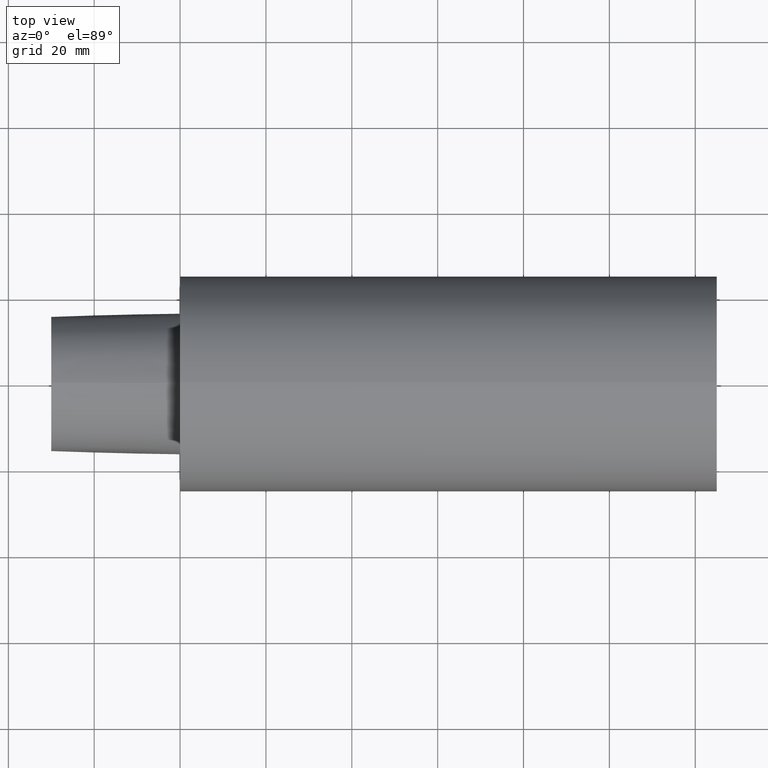
[diagram: clean part render]
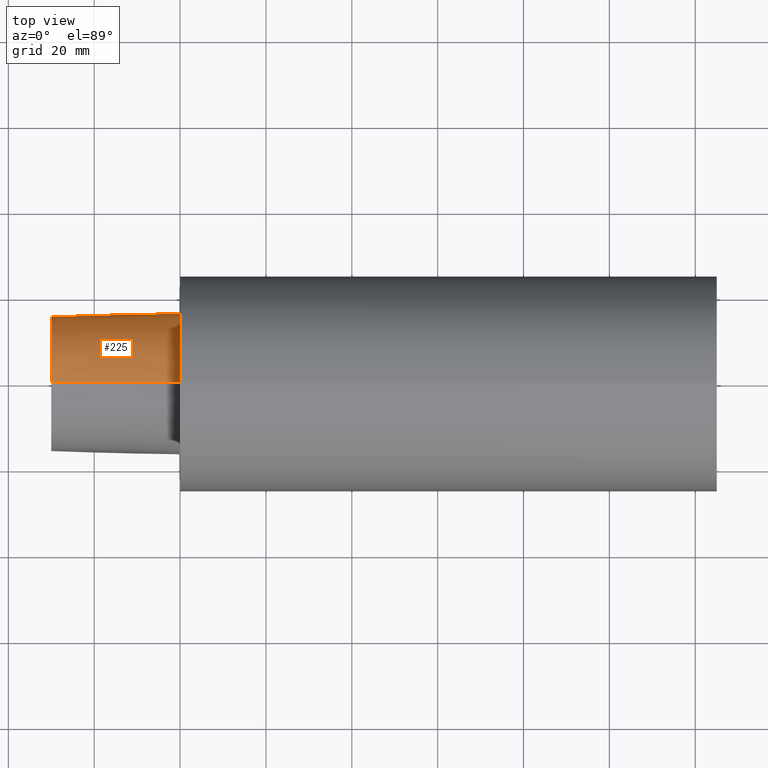
[diagram: same view with one face highlighted and labeled with its STEP entity id]
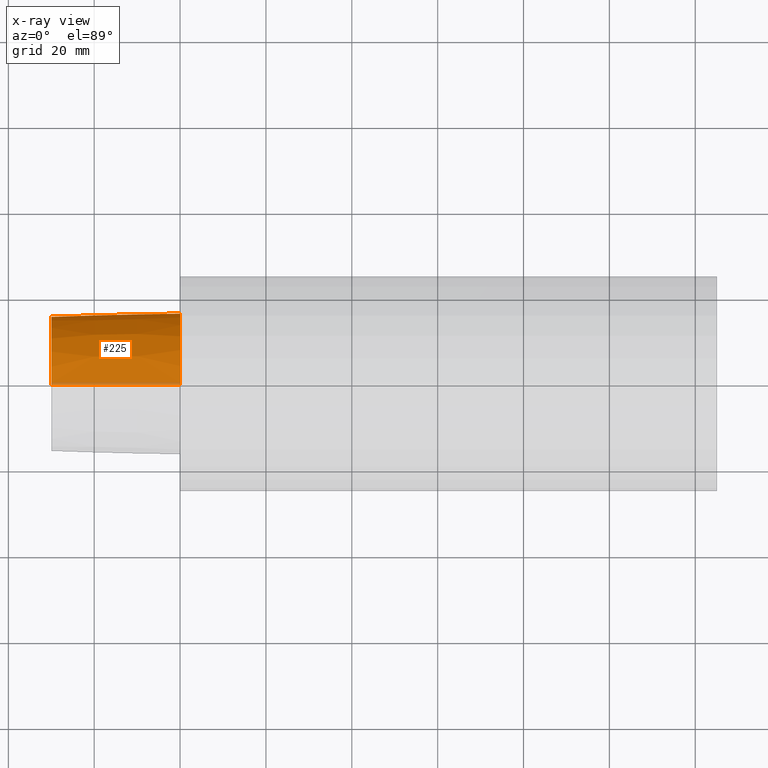
[diagram: x-ray of the same camera — body ghosted, the highlighted face saturated]
A machine part, top view. The second image highlights one B-rep face of the part: STEP entity #225.
The next image is the same camera in x-ray: the body ghosted, the highlighted face saturated — about 4% of this face is hidden behind the body in this view.
In plain terms, the highlighted conical surface has half-angle 1.432 deg.
Its self-contained STEP definition (entity closure, byte-faithful):
#7 = CARTESIAN_POINT ( 'NONE',  ( -29.99999996940000102, 0.000000000000000000, -15.70494056296217700 ) ) ;
#15 = VERTEX_POINT ( 'NONE', #41 ) ;
#22 = CARTESIAN_POINT ( 'NONE',  ( 0.000000000000000000, 0.000000000000000000, 0.000000000000000000 ) ) ;
#25 = AXIS2_PLACEMENT_3D ( 'NONE', #22, #99, #62 ) ;
#36 = CARTESIAN_POINT ( 'NONE',  ( 0.000000000000000000, 2.015157114129614578E-15, 16.45500658257258664 ) ) ;
#40 = EDGE_CURVE ( 'NONE', #203, #15, #215, .T. ) ;
#41 = CARTESIAN_POINT ( 'NONE',  ( 0.000000000000000000, 0.000000000000000000, -16.45500658257258664 ) ) ;
#58 = CARTESIAN_POINT ( 'NONE',  ( 0.000000000000000000, 0.000000000000000000, 0.000000000000000000 ) ) ;
#62 = DIRECTION ( 'NONE',  ( 0.000000000000000000, 0.000000000000000000, 1.000000000000000000 ) ) ;
#69 = EDGE_LOOP ( 'NONE', ( #147, #117, #76, #250 ) ) ;
#74 = VERTEX_POINT ( 'NONE', #7 ) ;
#76 = ORIENTED_EDGE ( 'NONE', *, *, #40, .T. ) ;
#80 = LINE ( 'NONE', #96, #137 ) ;
#83 = VERTEX_POINT ( 'NONE', #242 ) ;
#96 = CARTESIAN_POINT ( 'NONE',  ( 0.000000000000000000, 2.015157114129614578E-15, 16.45500658257258664 ) ) ;
#99 = DIRECTION ( 'NONE',  ( -1.000000000000000000, 0.000000000000000000, 0.000000000000000000 ) ) ;
#111 = CARTESIAN_POINT ( 'NONE',  ( -29.99999996940000102, 0.000000000000000000, 0.000000000000000000 ) ) ;
#117 = ORIENTED_EDGE ( 'NONE', *, *, #196, .T. ) ;
#128 = DIRECTION ( 'NONE',  ( -1.000000000000000000, 0.000000000000000000, 0.000000000000000000 ) ) ;
#130 = DIRECTION ( 'NONE',  ( 0.000000000000000000, 0.000000000000000000, -1.000000000000000000 ) ) ;
#137 = VECTOR ( 'NONE', #226, 999.9999999999998863 ) ;
#138 = EDGE_CURVE ( 'NONE', #83, #74, #165, .T. ) ;
#145 = AXIS2_PLACEMENT_3D ( 'NONE', #111, #128, #255 ) ;
#147 = ORIENTED_EDGE ( 'NONE', *, *, #138, .F. ) ;
#148 = DIRECTION ( 'NONE',  ( 0.9996875914402667540, 0.000000000000000000, -0.02499438977767799372 ) ) ;
#152 = CARTESIAN_POINT ( 'NONE',  ( 0.000000000000000000, 0.000000000000000000, -16.45500658257258664 ) ) ;
#160 = CONICAL_SURFACE ( 'NONE', #193, 16.45500658257258664, 0.02499699292341668252 ) ;
#165 = CIRCLE ( 'NONE', #145, 15.70494056296217700 ) ;
#166 = EDGE_CURVE ( 'NONE', #74, #15, #229, .T. ) ;
#168 = DIRECTION ( 'NONE',  ( 1.000000000000000000, 0.000000000000000000, 0.000000000000000000 ) ) ;
#193 = AXIS2_PLACEMENT_3D ( 'NONE', #58, #168, #130 ) ;
#196 = EDGE_CURVE ( 'NONE', #83, #203, #80, .T. ) ;
#203 = VERTEX_POINT ( 'NONE', #36 ) ;
#214 = FACE_OUTER_BOUND ( 'NONE', #69, .T. ) ;
#215 = CIRCLE ( 'NONE', #25, 16.45500658257258664 ) ;
#225 = ADVANCED_FACE ( 'NONE', ( #214 ), #160, .T. ) ;
#226 = DIRECTION ( 'NONE',  ( 0.9996875914402667540, 3.060929943787468651E-18, 0.02499438977767799372 ) ) ;
#229 = LINE ( 'NONE', #152, #235 ) ;
#235 = VECTOR ( 'NONE', #148, 999.9999999999998863 ) ;
#242 = CARTESIAN_POINT ( 'NONE',  ( -29.99999996940000102, 1.969228816626358703E-15, 15.70494056296217700 ) ) ;
#250 = ORIENTED_EDGE ( 'NONE', *, *, #166, .F. ) ;
#255 = DIRECTION ( 'NONE',  ( 0.000000000000000000, 0.000000000000000000, 1.000000000000000000 ) ) ;